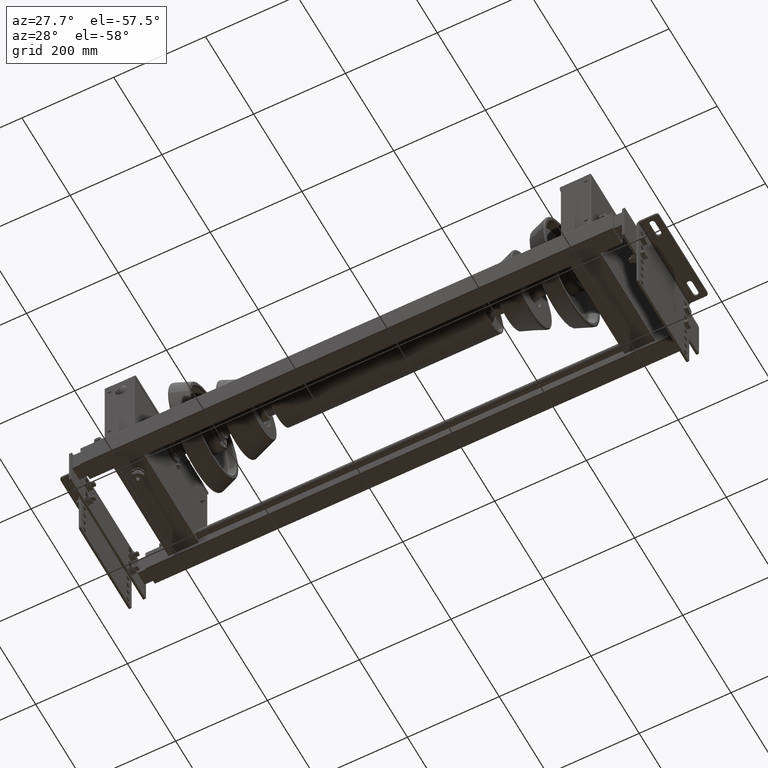
[diagram: clean part render]
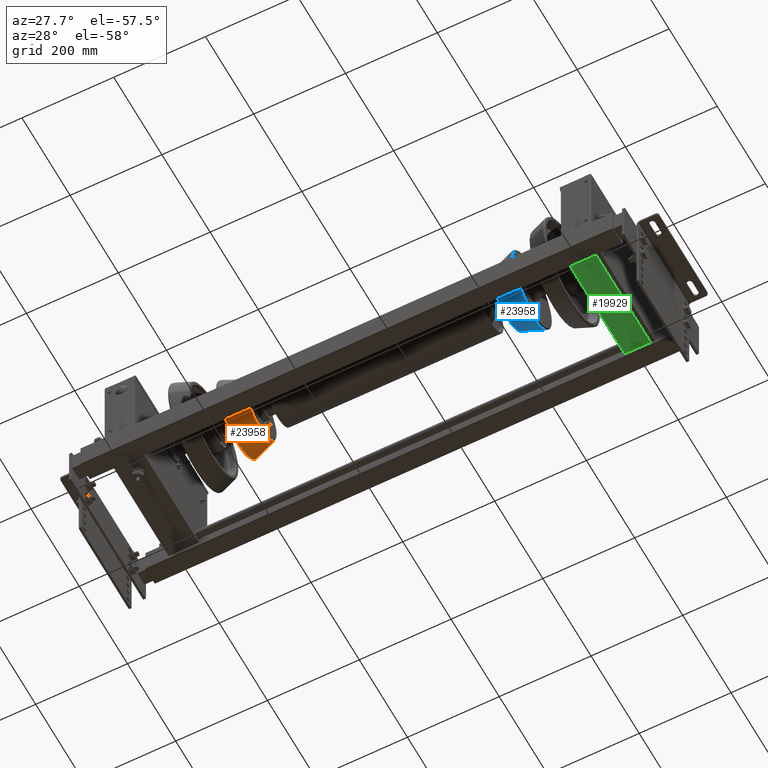
[diagram: same view with three faces highlighted in distinct colors, each labeled with its STEP entity id]
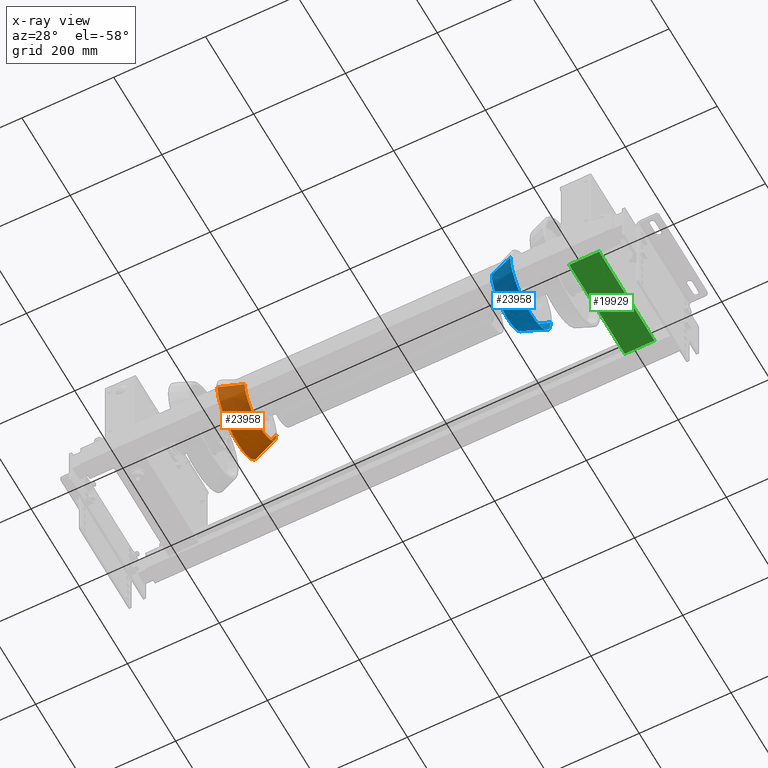
[diagram: x-ray of the same camera — body ghosted, the three highlighted faces saturated]
A machine part, auxiliary view with three faces highlighted in distinct colors.
The next image is the same camera in x-ray (body ghosted, the three faces saturated) — at least one of them is partly hidden behind the body in this view.
Their STEP definitions:

[orange] entity #23958 — the highlighted conical surface has half-angle 20 deg.
#23775=CARTESIAN_POINT('',(-25.855050358314166,-65.580349821799388,-8.031277E-015));
#23776=VERTEX_POINT('',#23775);
#23784=CARTESIAN_POINT('',(-25.855050358314166,-8.031277E-015,65.580349821799373));
#23785=VERTEX_POINT('',#23784);
#23786=CARTESIAN_POINT('',(-25.855050358314166,0.0,-8.031011E-015));
#23787=DIRECTION('',(-1.0,0.0,0.0));
#23788=DIRECTION('',(0.0,-1.0,0.0));
#23789=AXIS2_PLACEMENT_3D('',#23786,#23787,#23788);
#23790=CIRCLE('',#23789,65.580349821799388);
#23791=EDGE_CURVE('',#23776,#23785,#23790,.T.);
#23817=CARTESIAN_POINT('',(24.144949641685823,83.778861535109485,0.0));
#23818=VERTEX_POINT('',#23817);
#23819=CARTESIAN_POINT('',(-25.855050358314166,65.580349821799388,-1.606202E-014));
#23820=VERTEX_POINT('',#23819);
#23821=CARTESIAN_POINT('',(24.144949641685823,83.778861535109485,0.0));
#23822=DIRECTION('',(-0.939692620785908,-0.342020143325668,-3.018673E-016));
#23823=VECTOR('',#23822,53.208888623795588);
#23824=LINE('',#23821,#23823);
#23825=EDGE_CURVE('',#23818,#23820,#23824,.T.);
#23836=CARTESIAN_POINT('',(24.144949641685827,-83.778861535109485,-1.025995E-014));
#23837=VERTEX_POINT('',#23836);
#23845=CARTESIAN_POINT('',(24.144949641685827,-83.778861535109485,-1.025995E-014));
#23846=DIRECTION('',(-0.939692620785909,0.342020143325668,4.188539E-017));
#23847=VECTOR('',#23846,53.208888623795588);
#23848=LINE('',#23845,#23847);
#23849=EDGE_CURVE('',#23837,#23776,#23848,.T.);
#23885=CARTESIAN_POINT('',(24.144949641685827,-1.025995E-014,83.778861535109471));
#23886=VERTEX_POINT('',#23885);
#23894=CARTESIAN_POINT('',(24.144949641685823,0.0,-1.025961E-014));
#23895=DIRECTION('',(1.0,0.0,0.0));
#23896=DIRECTION('',(0.0,-1.0,0.0));
#23897=AXIS2_PLACEMENT_3D('',#23894,#23895,#23896);
#23898=CIRCLE('',#23897,83.778861535109485);
#23899=EDGE_CURVE('',#23886,#23837,#23898,.T.);
#23912=CARTESIAN_POINT('',(24.144949641685823,0.0,-1.025961E-014));
#23913=DIRECTION('',(1.0,0.0,0.0));
#23914=DIRECTION('',(0.0,-1.0,0.0));
#23915=AXIS2_PLACEMENT_3D('',#23912,#23913,#23914);
#23916=CIRCLE('',#23915,83.778861535109485);
#23917=EDGE_CURVE('',#23818,#23886,#23916,.T.);
#23939=CARTESIAN_POINT('',(0.0,0.0,0.0));
#23940=DIRECTION('',(1.0,0.0,0.0));
#23941=DIRECTION('',(0.0,1.0,0.0));
#23942=AXIS2_PLACEMENT_3D('',#23939,#23940,#23941);
#23943=CONICAL_SURFACE('',#23942,74.990818557679447,19.999999999999993);
#23944=ORIENTED_EDGE('',*,*,#23825,.T.);
#23945=CARTESIAN_POINT('',(-25.855050358314166,0.0,-8.031011E-015));
#23946=DIRECTION('',(-1.0,0.0,0.0));
#23947=DIRECTION('',(0.0,-1.0,0.0));
#23948=AXIS2_PLACEMENT_3D('',#23945,#23946,#23947);
#23949=CIRCLE('',#23948,65.580349821799388);
#23950=EDGE_CURVE('',#23785,#23820,#23949,.T.);
#23951=ORIENTED_EDGE('',*,*,#23950,.F.);
#23952=ORIENTED_EDGE('',*,*,#23791,.F.);
#23953=ORIENTED_EDGE('',*,*,#23849,.F.);
#23954=ORIENTED_EDGE('',*,*,#23899,.F.);
#23955=ORIENTED_EDGE('',*,*,#23917,.F.);
#23956=EDGE_LOOP('',(#23944,#23951,#23952,#23953,#23954,#23955));
#23957=FACE_OUTER_BOUND('',#23956,.T.);
#23958=ADVANCED_FACE('',(#23957),#23943,.T.);

[blue] entity #23958 — the highlighted conical surface has half-angle 20 deg.
#23775=CARTESIAN_POINT('',(-25.855050358314166,-65.580349821799388,-8.031277E-015));
#23776=VERTEX_POINT('',#23775);
#23784=CARTESIAN_POINT('',(-25.855050358314166,-8.031277E-015,65.580349821799373));
#23785=VERTEX_POINT('',#23784);
#23786=CARTESIAN_POINT('',(-25.855050358314166,0.0,-8.031011E-015));
#23787=DIRECTION('',(-1.0,0.0,0.0));
#23788=DIRECTION('',(0.0,-1.0,0.0));
#23789=AXIS2_PLACEMENT_3D('',#23786,#23787,#23788);
#23790=CIRCLE('',#23789,65.580349821799388);
#23791=EDGE_CURVE('',#23776,#23785,#23790,.T.);
#23817=CARTESIAN_POINT('',(24.144949641685823,83.778861535109485,0.0));
#23818=VERTEX_POINT('',#23817);
#23819=CARTESIAN_POINT('',(-25.855050358314166,65.580349821799388,-1.606202E-014));
#23820=VERTEX_POINT('',#23819);
#23821=CARTESIAN_POINT('',(24.144949641685823,83.778861535109485,0.0));
#23822=DIRECTION('',(-0.939692620785908,-0.342020143325668,-3.018673E-016));
#23823=VECTOR('',#23822,53.208888623795588);
#23824=LINE('',#23821,#23823);
#23825=EDGE_CURVE('',#23818,#23820,#23824,.T.);
#23836=CARTESIAN_POINT('',(24.144949641685827,-83.778861535109485,-1.025995E-014));
#23837=VERTEX_POINT('',#23836);
#23845=CARTESIAN_POINT('',(24.144949641685827,-83.778861535109485,-1.025995E-014));
#23846=DIRECTION('',(-0.939692620785909,0.342020143325668,4.188539E-017));
#23847=VECTOR('',#23846,53.208888623795588);
#23848=LINE('',#23845,#23847);
#23849=EDGE_CURVE('',#23837,#23776,#23848,.T.);
#23885=CARTESIAN_POINT('',(24.144949641685827,-1.025995E-014,83.778861535109471));
#23886=VERTEX_POINT('',#23885);
#23894=CARTESIAN_POINT('',(24.144949641685823,0.0,-1.025961E-014));
#23895=DIRECTION('',(1.0,0.0,0.0));
#23896=DIRECTION('',(0.0,-1.0,0.0));
#23897=AXIS2_PLACEMENT_3D('',#23894,#23895,#23896);
#23898=CIRCLE('',#23897,83.778861535109485);
#23899=EDGE_CURVE('',#23886,#23837,#23898,.T.);
#23912=CARTESIAN_POINT('',(24.144949641685823,0.0,-1.025961E-014));
#23913=DIRECTION('',(1.0,0.0,0.0));
#23914=DIRECTION('',(0.0,-1.0,0.0));
#23915=AXIS2_PLACEMENT_3D('',#23912,#23913,#23914);
#23916=CIRCLE('',#23915,83.778861535109485);
#23917=EDGE_CURVE('',#23818,#23886,#23916,.T.);
#23939=CARTESIAN_POINT('',(0.0,0.0,0.0));
#23940=DIRECTION('',(1.0,0.0,0.0));
#23941=DIRECTION('',(0.0,1.0,0.0));
#23942=AXIS2_PLACEMENT_3D('',#23939,#23940,#23941);
#23943=CONICAL_SURFACE('',#23942,74.990818557679447,19.999999999999993);
#23944=ORIENTED_EDGE('',*,*,#23825,.T.);
#23945=CARTESIAN_POINT('',(-25.855050358314166,0.0,-8.031011E-015));
#23946=DIRECTION('',(-1.0,0.0,0.0));
#23947=DIRECTION('',(0.0,-1.0,0.0));
#23948=AXIS2_PLACEMENT_3D('',#23945,#23946,#23947);
#23949=CIRCLE('',#23948,65.580349821799388);
#23950=EDGE_CURVE('',#23785,#23820,#23949,.T.);
#23951=ORIENTED_EDGE('',*,*,#23950,.F.);
#23952=ORIENTED_EDGE('',*,*,#23791,.F.);
#23953=ORIENTED_EDGE('',*,*,#23849,.F.);
#23954=ORIENTED_EDGE('',*,*,#23899,.F.);
#23955=ORIENTED_EDGE('',*,*,#23917,.F.);
#23956=EDGE_LOOP('',(#23944,#23951,#23952,#23953,#23954,#23955));
#23957=FACE_OUTER_BOUND('',#23956,.T.);
#23958=ADVANCED_FACE('',(#23957),#23943,.T.);

[green] entity #19929 — the highlighted planar face has unit normal (-0, -0, -1).
#19384=CARTESIAN_POINT('',(-115.000000000000910,-144.999999999999770,63.500000000000000));
#19385=VERTEX_POINT('',#19384);
#19392=CARTESIAN_POINT('',(114.999999999999090,-144.999999999999770,63.500000000000000));
#19393=VERTEX_POINT('',#19392);
#19394=CARTESIAN_POINT('',(114.999999999999090,-144.999999999999770,63.500000000000000));
#19395=DIRECTION('',(-1.0,0.0,0.0));
#19396=VECTOR('',#19395,230.0);
#19397=LINE('',#19394,#19396);
#19398=EDGE_CURVE('',#19393,#19385,#19397,.T.);
#19534=CARTESIAN_POINT('',(114.999999999999090,-144.999999999999770,-1.500000000000000));
#19535=VERTEX_POINT('',#19534);
#19560=CARTESIAN_POINT('',(114.999999999999090,-144.999999999999770,-1.500000000000000));
#19561=DIRECTION('',(0.0,0.0,1.0));
#19562=VECTOR('',#19561,65.0);
#19563=LINE('',#19560,#19562);
#19564=EDGE_CURVE('',#19535,#19393,#19563,.T.);
#19607=CARTESIAN_POINT('',(-115.000000000000910,-144.999999999999770,-1.500000000000000));
#19608=VERTEX_POINT('',#19607);
#19609=CARTESIAN_POINT('',(-115.000000000000910,-144.999999999999770,-1.500000000000000));
#19610=DIRECTION('',(1.0,0.0,0.0));
#19611=VECTOR('',#19610,230.0);
#19612=LINE('',#19609,#19611);
#19613=EDGE_CURVE('',#19608,#19535,#19612,.T.);
#19731=CARTESIAN_POINT('',(-115.000000000000910,-144.999999999999770,-1.500000000000000));
#19732=DIRECTION('',(0.0,0.0,1.0));
#19733=VECTOR('',#19732,65.0);
#19734=LINE('',#19731,#19733);
#19735=EDGE_CURVE('',#19608,#19385,#19734,.T.);
#19918=CARTESIAN_POINT('',(114.999999999999090,-144.999999999999770,-1.500000000000000));
#19919=DIRECTION('',(0.0,-1.0,0.0));
#19920=DIRECTION('',(0.0,0.0,-1.0));
#19921=AXIS2_PLACEMENT_3D('',#19918,#19919,#19920);
#19922=PLANE('',#19921);
#19923=ORIENTED_EDGE('',*,*,#19735,.F.);
#19924=ORIENTED_EDGE('',*,*,#19613,.T.);
#19925=ORIENTED_EDGE('',*,*,#19564,.T.);
#19926=ORIENTED_EDGE('',*,*,#19398,.T.);
#19927=EDGE_LOOP('',(#19923,#19924,#19925,#19926));
#19928=FACE_OUTER_BOUND('',#19927,.T.);
#19929=ADVANCED_FACE('',(#19928),#19922,.T.);